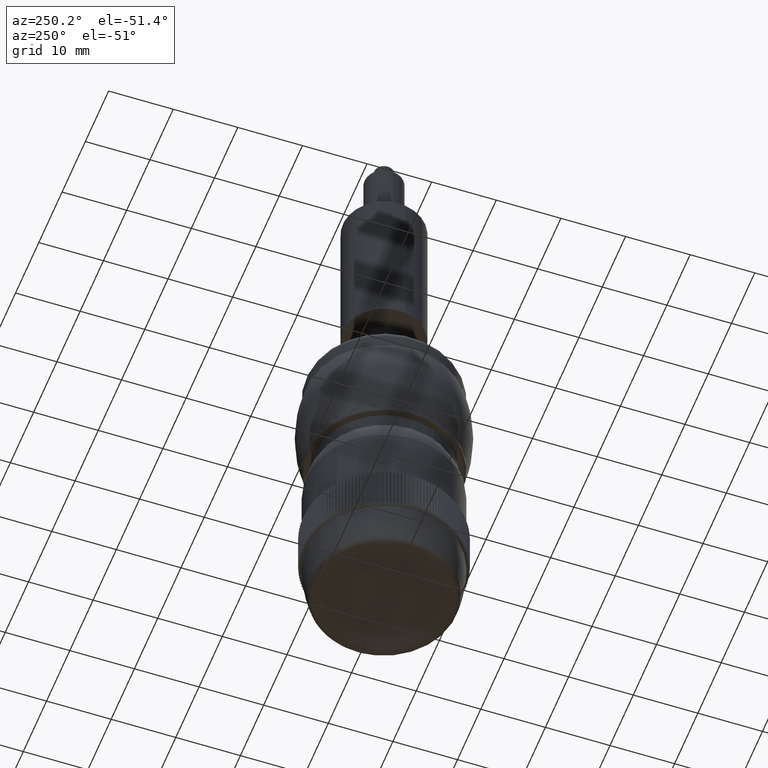
[diagram: clean part render]
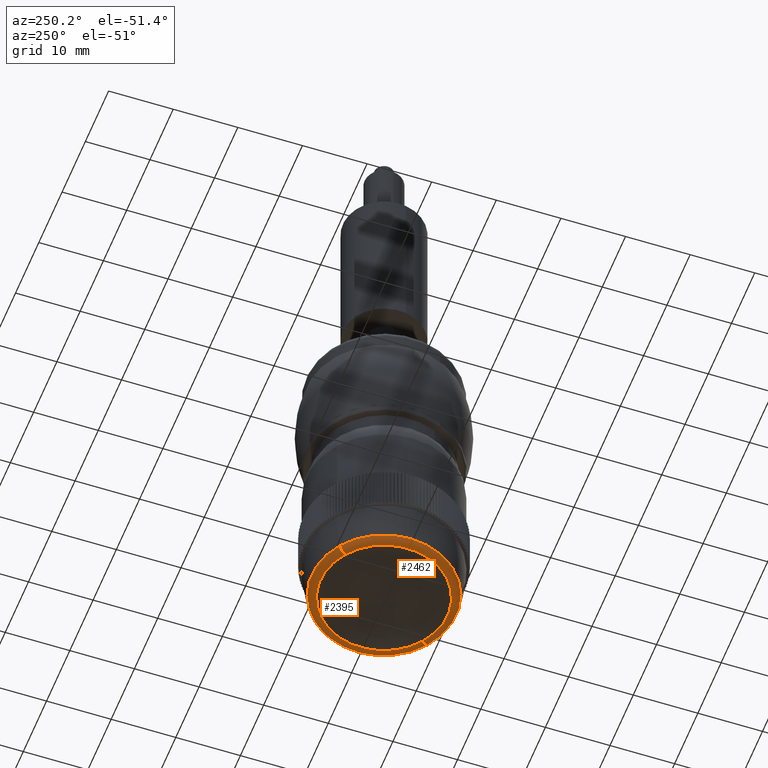
[diagram: same view with one multi-face feature highlighted, each face labeled with its STEP entity id]
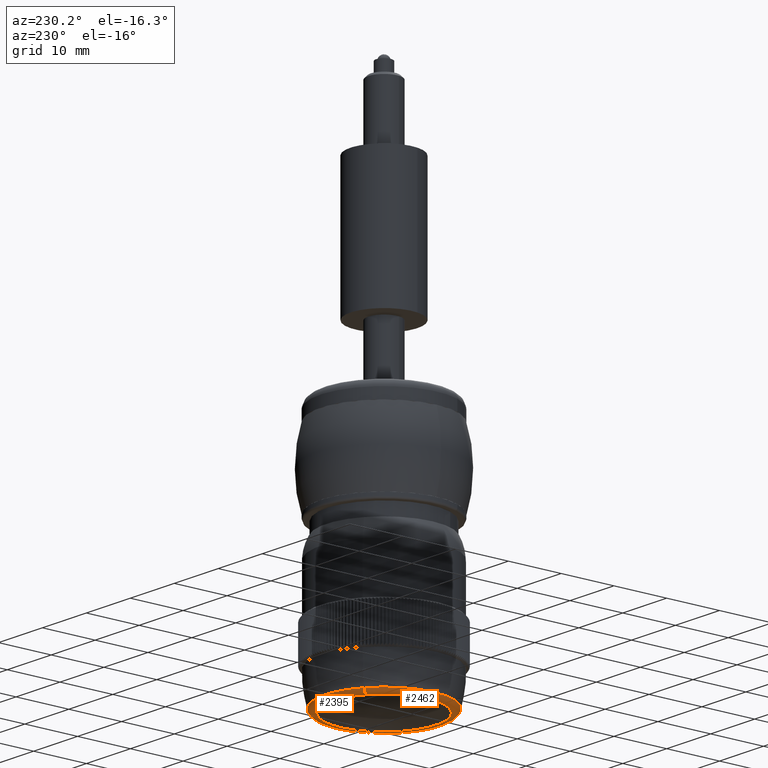
[diagram: same view with one multi-face feature highlighted, each face labeled with its STEP entity id]
A machine part, auxiliary view. The highlighted faces form ONE feature: a constant-radius fillet chain: 2 tangent blend faces with common blend radius 1 mm. The faces share edges in the B-rep.
A second angle (auxiliary view) of the same feature is appended — it is thin or edge-on in the first view.
Their STEP definitions:
[1] entity #2462 (Torus):
#2331 = VERTEX_POINT ( 'NONE', #11245 ) ;
#2334 = VERTEX_POINT ( 'NONE', #11287 ) ;
#2386 = VERTEX_POINT ( 'NONE', #11396 ) ;
#2388 = EDGE_CURVE ( 'NONE', #2386, #2405, #11394, .T. ) ;
#2398 = EDGE_CURVE ( 'NONE', #2331, #2399, #11504, .T. ) ;
#2399 = VERTEX_POINT ( 'NONE', #11500 ) ;
#2405 = VERTEX_POINT ( 'NONE', #11488 ) ;
#2407 = EDGE_CURVE ( 'NONE', #2334, #2405, #11486, .T. ) ;
#2461 = EDGE_CURVE ( 'NONE', #2399, #2386, #11658, .T. ) ;
#2462 = ADVANCED_FACE ( 'NONE', ( #11653 ), #11697, .T. ) ;
#2463 = EDGE_LOOP ( 'NONE', ( #2464, #2465, #2467, #2468, #2469 ) ) ;
#2464 = ORIENTED_EDGE ( 'NONE', *, *, #2398, .F. ) ;
#2465 = ORIENTED_EDGE ( 'NONE', *, *, #2466, .T. ) ;
#2466 = EDGE_CURVE ( 'NONE', #2331, #2334, #11692, .T. ) ;
#2467 = ORIENTED_EDGE ( 'NONE', *, *, #2407, .T. ) ;
#2468 = ORIENTED_EDGE ( 'NONE', *, *, #2388, .F. ) ;
#2469 = ORIENTED_EDGE ( 'NONE', *, *, #2461, .F. ) ;
#11245 = CARTESIAN_POINT ( 'NONE',  ( 0.1172959394740903100, -0.3670244413078822500, -2.600346745514967600 ) ) ;
#11287 = CARTESIAN_POINT ( 'NONE',  ( -0.3918360472829978100, 0.3536615225618192100, -2.600346745514967600 ) ) ;
#11394 = CIRCLE ( 'NONE', #11443, 0.3875725115418743300 ) ;
#11396 = CARTESIAN_POINT ( 'NONE',  ( -0.4538189596862246500, -0.2303089217993619100, -2.626682936737502900 ) ) ;
#11440 = DIRECTION ( 'NONE',  ( -0.5769951577233285400, 0.8167475668551643600, 0.0000000000000000000 ) ) ;
#11441 = DIRECTION ( 'NONE',  ( -1.392889126570072000E-016, -3.584650618268070600E-017, -1.000000000000000000 ) ) ;
#11442 = CARTESIAN_POINT ( 'NONE',  ( -0.1372700539044537600, -0.006681459373031536900, -2.626682936737502900 ) ) ;
#11443 = AXIS2_PLACEMENT_3D ( 'NONE', #11442, #11441, #11440 ) ;
#11445 = CARTESIAN_POINT ( 'NONE',  ( 0.09530250701892983800, -0.3358923213860733300, -2.590493667923645700 ) ) ;
#11482 = DIRECTION ( 'NONE',  ( 0.5769951577233293200, -0.8167475668551638100, 0.0000000000000000000 ) ) ;
#11483 = DIRECTION ( 'NONE',  ( -0.8167475668551643600, -0.5769951577233285400, 1.344471409912182600E-016 ) ) ;
#11484 = CARTESIAN_POINT ( 'NONE',  ( -0.3698426148278373100, 0.3225294026400102900, -2.590493667923645700 ) ) ;
#11485 = AXIS2_PLACEMENT_3D ( 'NONE', #11484, #11483, #11482 ) ;
#11486 = CIRCLE ( 'NONE', #11485, 0.03937007874015761200 ) ;
#11488 = CARTESIAN_POINT ( 'NONE',  ( -0.3608975163307839900, 0.3098674464087392000, -2.626682936737502900 ) ) ;
#11500 = CARTESIAN_POINT ( 'NONE',  ( 0.08635740852187646900, -0.3232303651548023600, -2.626682936737502900 ) ) ;
#11501 = DIRECTION ( 'NONE',  ( -0.5769951577233287700, 0.8167475668551642500, 0.0000000000000000000 ) ) ;
#11502 = DIRECTION ( 'NONE',  ( 0.8167475668551643600, 0.5769951577233286600, -1.344471409912182600E-016 ) ) ;
#11503 = AXIS2_PLACEMENT_3D ( 'NONE', #11445, #11502, #11501 ) ;
#11504 = CIRCLE ( 'NONE', #11503, 0.03937007874015759100 ) ;
#11653 = FACE_OUTER_BOUND ( 'NONE', #2463, .T. ) ;
#11654 = DIRECTION ( 'NONE',  ( -0.5769951577233285400, 0.8167475668551643600, 0.0000000000000000000 ) ) ;
#11655 = DIRECTION ( 'NONE',  ( -1.392889126570072000E-016, -3.584650618268070600E-017, -1.000000000000000000 ) ) ;
#11656 = CARTESIAN_POINT ( 'NONE',  ( -0.1372700539044537600, -0.006681459373031536900, -2.626682936737502900 ) ) ;
#11657 = AXIS2_PLACEMENT_3D ( 'NONE', #11656, #11655, #11654 ) ;
#11658 = CIRCLE ( 'NONE', #11657, 0.3875725115418743300 ) ;
#11688 = DIRECTION ( 'NONE',  ( -0.5769951577233285400, 0.8167475668551644800, 0.0000000000000000000 ) ) ;
#11689 = DIRECTION ( 'NONE',  ( -1.392889126570072000E-016, -3.584650618268070600E-017, -1.000000000000000000 ) ) ;
#11690 = CARTESIAN_POINT ( 'NONE',  ( -0.1372700539044537600, -0.006681459373031536900, -2.600346745514967600 ) ) ;
#11691 = AXIS2_PLACEMENT_3D ( 'NONE', #11690, #11689, #11688 ) ;
#11692 = CIRCLE ( 'NONE', #11691, 0.4411925992290726100 ) ;
#11694 = DIRECTION ( 'NONE',  ( -0.5769951577233284300, 0.8167475668551644800, 5.109148142267771400E-017 ) ) ;
#11695 = DIRECTION ( 'NONE',  ( -1.392889126570072000E-016, -3.584650618268070600E-017, -1.000000000000000000 ) ) ;
#11696 = AXIS2_PLACEMENT_3D ( 'NONE', #11698, #11695, #11694 ) ;
#11697 = TOROIDAL_SURFACE ( 'NONE', #11696, 0.4030754120035492400, 0.03937007874015760500 ) ;
#11698 = CARTESIAN_POINT ( 'NONE',  ( -0.1372700539044537600, -0.006681459373031536900, -2.590493667923645700 ) ) ;
[2] entity #2395 (Torus):
#2331 = VERTEX_POINT ( 'NONE', #11245 ) ;
#2333 = EDGE_CURVE ( 'NONE', #2334, #2331, #11292, .T. ) ;
#2334 = VERTEX_POINT ( 'NONE', #11287 ) ;
#2337 = EDGE_LOOP ( 'NONE', ( #2396, #2397, #2400, #2403, #2406 ) ) ;
#2395 = ADVANCED_FACE ( 'NONE', ( #11465 ), #11444, .T. ) ;
#2396 = ORIENTED_EDGE ( 'NONE', *, *, #2333, .T. ) ;
#2397 = ORIENTED_EDGE ( 'NONE', *, *, #2398, .T. ) ;
#2398 = EDGE_CURVE ( 'NONE', #2331, #2399, #11504, .T. ) ;
#2399 = VERTEX_POINT ( 'NONE', #11500 ) ;
#2400 = ORIENTED_EDGE ( 'NONE', *, *, #2401, .F. ) ;
#2401 = EDGE_CURVE ( 'NONE', #2402, #2399, #11499, .T. ) ;
#2402 = VERTEX_POINT ( 'NONE', #11494 ) ;
#2403 = ORIENTED_EDGE ( 'NONE', *, *, #2404, .F. ) ;
#2404 = EDGE_CURVE ( 'NONE', #2405, #2402, #11493, .T. ) ;
#2405 = VERTEX_POINT ( 'NONE', #11488 ) ;
#2406 = ORIENTED_EDGE ( 'NONE', *, *, #2407, .F. ) ;
#2407 = EDGE_CURVE ( 'NONE', #2334, #2405, #11486, .T. ) ;
#11245 = CARTESIAN_POINT ( 'NONE',  ( 0.1172959394740903100, -0.3670244413078822500, -2.600346745514967600 ) ) ;
#11287 = CARTESIAN_POINT ( 'NONE',  ( -0.3918360472829978100, 0.3536615225618192100, -2.600346745514967600 ) ) ;
#11288 = DIRECTION ( 'NONE',  ( -0.5769951577233285400, 0.8167475668551644800, 0.0000000000000000000 ) ) ;
#11289 = DIRECTION ( 'NONE',  ( -1.392889126570072000E-016, -3.584650618268070600E-017, -1.000000000000000000 ) ) ;
#11290 = CARTESIAN_POINT ( 'NONE',  ( -0.1372700539044537600, -0.006681459373031536900, -2.600346745514967600 ) ) ;
#11291 = AXIS2_PLACEMENT_3D ( 'NONE', #11290, #11289, #11288 ) ;
#11292 = CIRCLE ( 'NONE', #11291, 0.4411925992290726100 ) ;
#11444 = TOROIDAL_SURFACE ( 'NONE', #11507, 0.4030754120035492400, 0.03937007874015760500 ) ;
#11445 = CARTESIAN_POINT ( 'NONE',  ( 0.09530250701892983800, -0.3358923213860733300, -2.590493667923645700 ) ) ;
#11446 = CARTESIAN_POINT ( 'NONE',  ( -0.1372700539044537600, -0.006681459373031536900, -2.590493667923645700 ) ) ;
#11465 = FACE_OUTER_BOUND ( 'NONE', #2337, .T. ) ;
#11482 = DIRECTION ( 'NONE',  ( 0.5769951577233293200, -0.8167475668551638100, 0.0000000000000000000 ) ) ;
#11483 = DIRECTION ( 'NONE',  ( -0.8167475668551643600, -0.5769951577233285400, 1.344471409912182600E-016 ) ) ;
#11484 = CARTESIAN_POINT ( 'NONE',  ( -0.3698426148278373100, 0.3225294026400102900, -2.590493667923645700 ) ) ;
#11485 = AXIS2_PLACEMENT_3D ( 'NONE', #11484, #11483, #11482 ) ;
#11486 = CIRCLE ( 'NONE', #11485, 0.03937007874015761200 ) ;
#11488 = CARTESIAN_POINT ( 'NONE',  ( -0.3608975163307839900, 0.3098674464087392000, -2.626682936737502900 ) ) ;
#11489 = DIRECTION ( 'NONE',  ( -0.5769951577233285400, 0.8167475668551643600, 0.0000000000000000000 ) ) ;
#11490 = DIRECTION ( 'NONE',  ( -1.392889126570072000E-016, -3.584650618268070600E-017, -1.000000000000000000 ) ) ;
#11491 = CARTESIAN_POINT ( 'NONE',  ( -0.1372700539044537600, -0.006681459373031536900, -2.626682936737502900 ) ) ;
#11492 = AXIS2_PLACEMENT_3D ( 'NONE', #11491, #11490, #11489 ) ;
#11493 = CIRCLE ( 'NONE', #11492, 0.3875725115418743300 ) ;
#11494 = CARTESIAN_POINT ( 'NONE',  ( 0.1792788518773171800, 0.2169460030532987200, -2.626682936737502900 ) ) ;
#11495 = DIRECTION ( 'NONE',  ( -0.5769951577233285400, 0.8167475668551643600, 0.0000000000000000000 ) ) ;
#11496 = DIRECTION ( 'NONE',  ( -1.392889126570072000E-016, -3.584650618268070600E-017, -1.000000000000000000 ) ) ;
#11497 = CARTESIAN_POINT ( 'NONE',  ( -0.1372700539044537600, -0.006681459373031536900, -2.626682936737502900 ) ) ;
#11498 = AXIS2_PLACEMENT_3D ( 'NONE', #11497, #11496, #11495 ) ;
#11499 = CIRCLE ( 'NONE', #11498, 0.3875725115418743300 ) ;
#11500 = CARTESIAN_POINT ( 'NONE',  ( 0.08635740852187646900, -0.3232303651548023600, -2.626682936737502900 ) ) ;
#11501 = DIRECTION ( 'NONE',  ( -0.5769951577233287700, 0.8167475668551642500, 0.0000000000000000000 ) ) ;
#11502 = DIRECTION ( 'NONE',  ( 0.8167475668551643600, 0.5769951577233286600, -1.344471409912182600E-016 ) ) ;
#11503 = AXIS2_PLACEMENT_3D ( 'NONE', #11445, #11502, #11501 ) ;
#11504 = CIRCLE ( 'NONE', #11503, 0.03937007874015759100 ) ;
#11505 = DIRECTION ( 'NONE',  ( -0.5769951577233284300, 0.8167475668551644800, 5.109148142267771400E-017 ) ) ;
#11506 = DIRECTION ( 'NONE',  ( -1.392889126570072000E-016, -3.584650618268070600E-017, -1.000000000000000000 ) ) ;
#11507 = AXIS2_PLACEMENT_3D ( 'NONE', #11446, #11506, #11505 ) ;